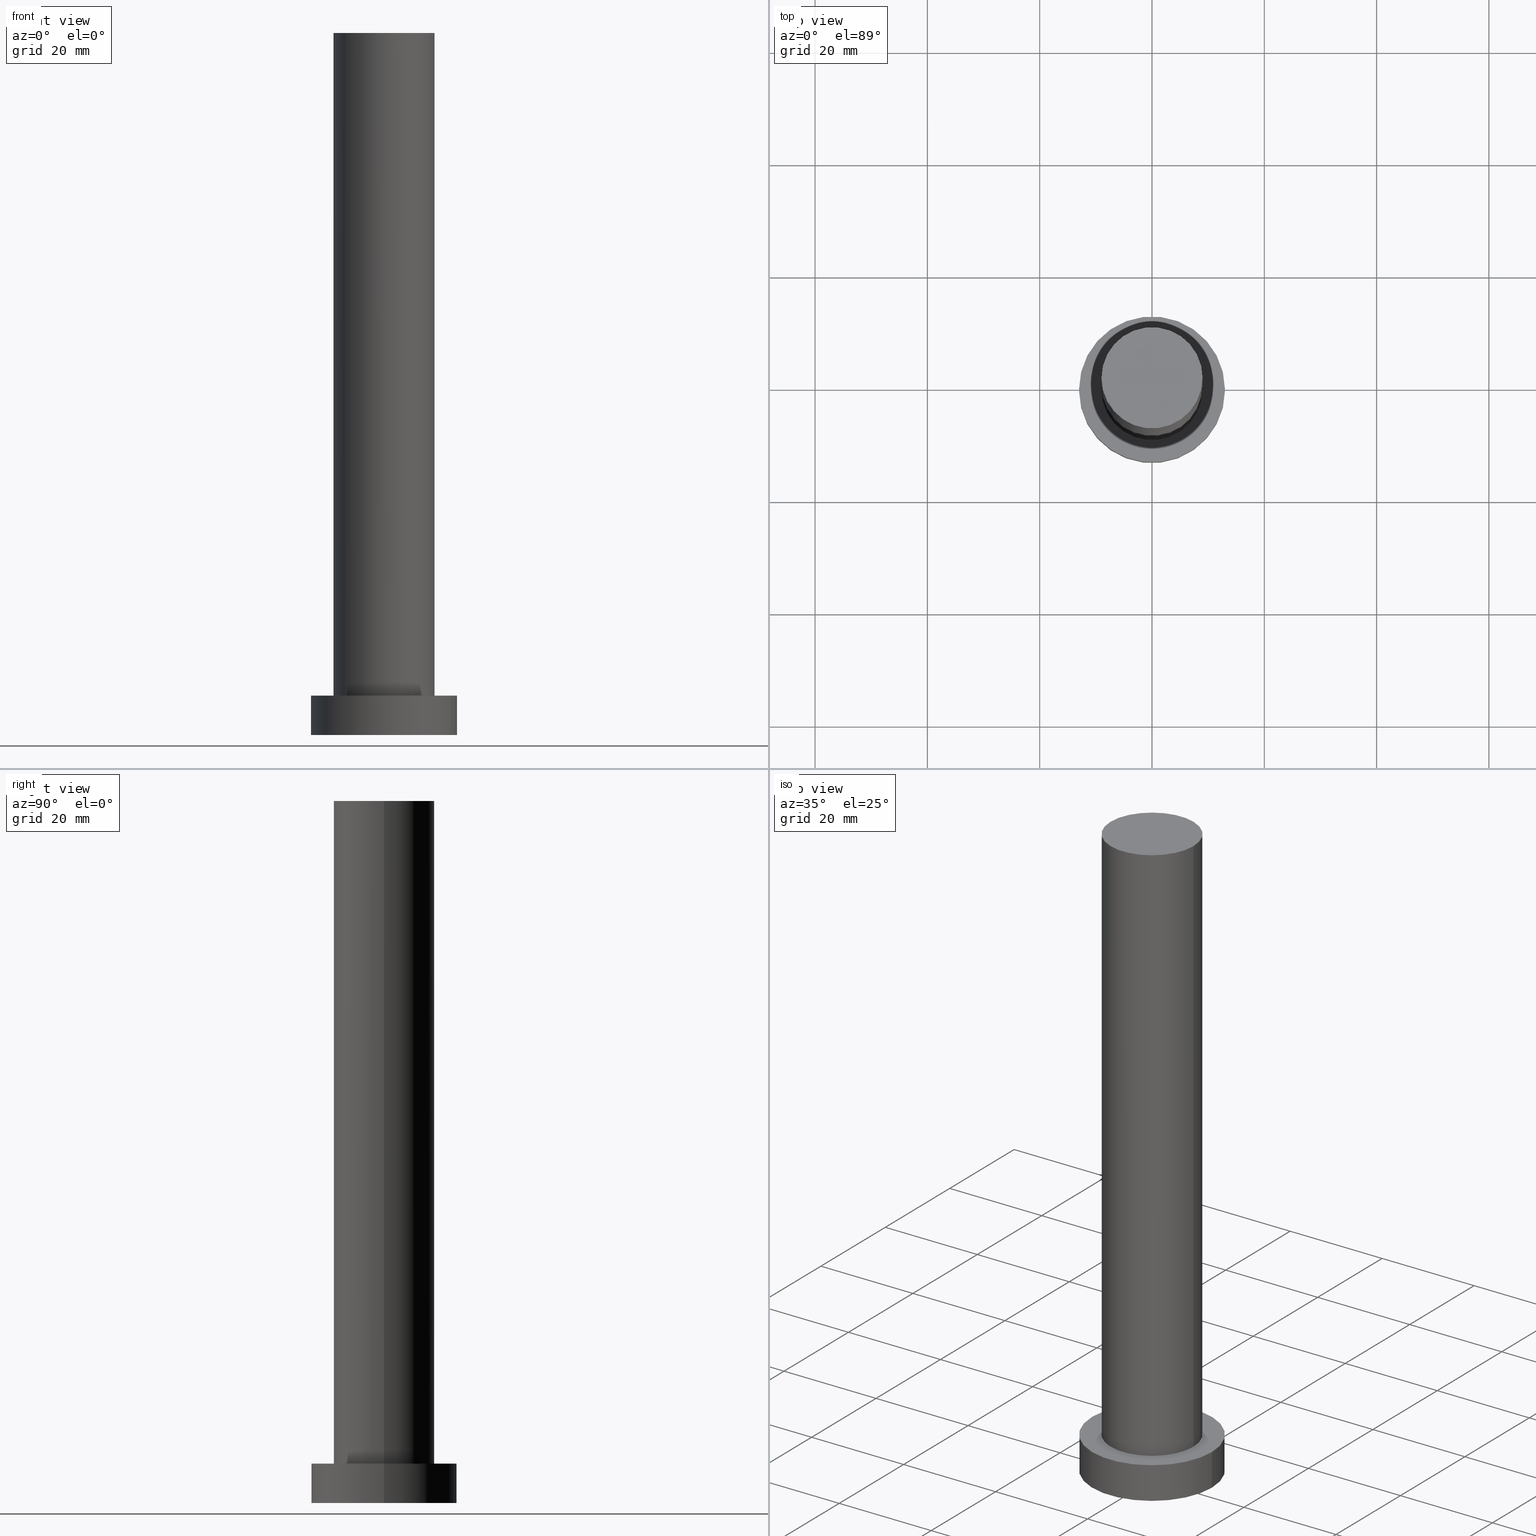
[diagram: canonical four-view strip — front | top / right | iso, engineering-drawing reading convention]
A machine part, canonical four-view strip (front | top / right | iso — engineering-drawing reading convention). The complete STEP part file that produces these views, byte-faithful:
ISO-10303-21;
HEADER;
FILE_DESCRIPTION (( 'STEP AP203' ),
    '1' );
FILE_NAME ('a920.STEP',
    '2023-02-13T09:42:07',
    ( '' ),
    ( '' ),
    'SwSTEP 2.0',
    'SolidWorks 2019',
    '' );
FILE_SCHEMA (( 'CONFIG_CONTROL_DESIGN' ));
ENDSEC;

DATA;
#1 = CARTESIAN_POINT ( 'NONE',  ( 0.000000000000000000, 0.000000000000000000, 0.000000000000000000 ) ) ;
#2 = CARTESIAN_POINT ( 'NONE',  ( 0.000000000000000000, 0.000000000000000000, 0.000000000000000000 ) ) ;
#3 = CARTESIAN_POINT ( 'NONE',  ( 0.000000000000000000, 0.000000000000000000, 125.0000000000000000 ) ) ;
#4 = DIRECTION ( 'NONE',  ( 1.000000000000000000, 0.000000000000000000, 0.000000000000000000 ) ) ;
#5 = DIRECTION ( 'NONE',  ( 0.000000000000000000, 0.000000000000000000, 1.000000000000000000 ) ) ;
#6 = CIRCLE ( 'NONE', #132, 9.000000000000000000 ) ;
#7 = DIRECTION ( 'NONE',  ( 1.000000000000000000, 0.000000000000000000, -0.000000000000000000 ) ) ;
#8 = COORDINATED_UNIVERSAL_TIME_OFFSET ( 1, 0, .AHEAD. ) ;
#9 = ORIENTED_EDGE ( 'NONE', *, *, #150, .T. ) ;
#10 = CC_DESIGN_DATE_AND_TIME_ASSIGNMENT ( #28, #183, ( #155 ) ) ;
#11 = CC_DESIGN_APPROVAL ( #54, ( #117 ) ) ;
#12 = ORIENTED_EDGE ( 'NONE', *, *, #40, .F. ) ;
#13 = ORIENTED_EDGE ( 'NONE', *, *, #211, .F. ) ;
#14 = ADVANCED_FACE ( 'NONE', ( #152 ), #114, .F. ) ;
#15 = ORIENTED_EDGE ( 'NONE', *, *, #83, .F. ) ;
#16 = LOCAL_TIME ( 10, 42, 7.000000000000000000, #219 ) ;
#17 = PERSON_AND_ORGANIZATION ( #23, #50 ) ;
#18 = CC_DESIGN_PERSON_AND_ORGANIZATION_ASSIGNMENT ( #168, #67, ( #117 ) ) ;
#19 = LINE ( 'NONE', #101, #242 ) ;
#20 = DIRECTION ( 'NONE',  ( 0.000000000000000000, 0.000000000000000000, 1.000000000000000000 ) ) ;
#21 = CARTESIAN_POINT ( 'NONE',  ( 0.000000000000000000, 0.000000000000000000, 0.000000000000000000 ) ) ;
#22 = FACE_OUTER_BOUND ( 'NONE', #223, .T. ) ;
#23 = PERSON ( 'NEUR�EN�', 'NEUR�EN�', 'NEUR�EN�', ('NEUR�EN�'), ('NEUR�EN�'), ('NEUR�EN�') ) ;
#24 = CARTESIAN_POINT ( 'NONE',  ( 0.000000000000000000, 0.000000000000000000, 125.0000000000000000 ) ) ;
#25 = APPLICATION_CONTEXT ( 'configuration controlled 3d designs of mechanical parts and assemblies' ) ;
#26 = EDGE_CURVE ( 'NONE', #87, #226, #209, .T. ) ;
#27 = ORIENTED_EDGE ( 'NONE', *, *, #150, .F. ) ;
#28 = DATE_AND_TIME ( #203, #156 ) ;
#29 = LOCAL_TIME ( 10, 42, 7.000000000000000000, #205 ) ;
#30 = ORIENTED_EDGE ( 'NONE', *, *, #83, .T. ) ;
#31 = ORIENTED_EDGE ( 'NONE', *, *, #207, .F. ) ;
#32 = APPROVAL ( #71, 'NEUR�EN�' ) ;
#33 = DATE_AND_TIME ( #170, #29 ) ;
#34 = ORIENTED_EDGE ( 'NONE', *, *, #211, .T. ) ;
#35 = EDGE_CURVE ( 'NONE', #179, #87, #217, .T. ) ;
#36 = DIRECTION ( 'NONE',  ( -0.000000000000000000, -0.000000000000000000, -1.000000000000000000 ) ) ;
#37 = CARTESIAN_POINT ( 'NONE',  ( -13.00000000000000178, 0.000000000000000000, 0.000000000000000000 ) ) ;
#38 = FACE_OUTER_BOUND ( 'NONE', #130, .T. ) ;
#39 = APPROVAL_PERSON_ORGANIZATION ( #17, #32, #48 ) ;
#40 = EDGE_CURVE ( 'NONE', #241, #226, #208, .T. ) ;
#41 = CARTESIAN_POINT ( 'NONE',  ( 9.000000000000000000, 1.102182119232617714E-15, 125.0000000000000000 ) ) ;
#42 = APPROVAL_ROLE ( '' ) ;
#43 = ORIENTED_EDGE ( 'NONE', *, *, #255, .F. ) ;
#44 = EDGE_LOOP ( 'NONE', ( #91, #181, #206, #182 ) ) ;
#45 = DATE_AND_TIME ( #98, #16 ) ;
#46 = EDGE_CURVE ( 'NONE', #184, #169, #133, .T. ) ;
#47 = VECTOR ( 'NONE', #214, 1000.000000000000000 ) ;
#48 = APPROVAL_ROLE ( '' ) ;
#49 = DIRECTION ( 'NONE',  ( -0.000000000000000000, -0.000000000000000000, -1.000000000000000000 ) ) ;
#50 = ORGANIZATION ( 'NEUR�EN�', 'NEUR�EN�', '' ) ;
#51 = DIRECTION ( 'NONE',  ( 1.000000000000000000, 0.000000000000000000, 0.000000000000000000 ) ) ;
#52 = LINE ( 'NONE', #141, #118 ) ;
#53 = MECHANICAL_CONTEXT ( 'NONE', #25, 'mechanical' ) ;
#54 = APPROVAL ( #166, 'NEUR�EN�' ) ;
#55 = CYLINDRICAL_SURFACE ( 'NONE', #97, 9.000000000000000000 ) ;
#56 = DIRECTION ( 'NONE',  ( -1.000000000000000000, 0.000000000000000000, 0.000000000000000000 ) ) ;
#57 = DIRECTION ( 'NONE',  ( 0.000000000000000000, 0.000000000000000000, 1.000000000000000000 ) ) ;
#58 = CARTESIAN_POINT ( 'NONE',  ( 0.000000000000000000, 0.000000000000000000, 7.000000000000000000 ) ) ;
#59 = DIRECTION ( 'NONE',  ( 1.000000000000000000, 0.000000000000000000, 0.000000000000000000 ) ) ;
#60 = APPLICATION_CONTEXT ( 'configuration controlled 3d designs of mechanical parts and assemblies' ) ;
#61 = EDGE_LOOP ( 'NONE', ( #27, #90, #30, #43 ) ) ;
#62 = PRODUCT ( 'a920', 'a920', '', ( #53 ) ) ;
#63 = APPROVAL_DATE_TIME ( #112, #54 ) ;
#64 = ORIENTED_EDGE ( 'NONE', *, *, #35, .T. ) ;
#65 = ORIENTED_EDGE ( 'NONE', *, *, #46, .F. ) ;
#66 = AXIS2_PLACEMENT_3D ( 'NONE', #58, #175, #82 ) ;
#67 = PERSON_AND_ORGANIZATION_ROLE ( 'design_supplier' ) ;
#68 = ORIENTED_EDGE ( 'NONE', *, *, #26, .T. ) ;
#69 = CYLINDRICAL_SURFACE ( 'NONE', #79, 9.000000000000000000 ) ;
#70 = CC_DESIGN_APPROVAL ( #32, ( #154 ) ) ;
#71 = APPROVAL_STATUS ( 'not_yet_approved' ) ;
#72 = APPROVAL_DATE_TIME ( #33, #32 ) ;
#73 = DIRECTION ( 'NONE',  ( 1.000000000000000000, 0.000000000000000000, 0.000000000000000000 ) ) ;
#74 = UNCERTAINTY_MEASURE_WITH_UNIT (LENGTH_MEASURE( 1.000000000000000082E-05 ), #194, 'distance_accuracy_value', 'NONE');
#75 = AXIS2_PLACEMENT_3D ( 'NONE', #1, #76, #213 ) ;
#76 = DIRECTION ( 'NONE',  ( 0.000000000000000000, 0.000000000000000000, 1.000000000000000000 ) ) ;
#77 = CC_DESIGN_PERSON_AND_ORGANIZATION_ASSIGNMENT ( #80, #144, ( #62 ) ) ;
#78 = DIRECTION ( 'NONE',  ( 0.000000000000000000, 0.000000000000000000, 1.000000000000000000 ) ) ;
#79 = AXIS2_PLACEMENT_3D ( 'NONE', #137, #49, #135 ) ;
#80 = PERSON_AND_ORGANIZATION ( #23, #50 ) ;
#81 = AXIS2_PLACEMENT_3D ( 'NONE', #143, #236, #215 ) ;
#82 = DIRECTION ( 'NONE',  ( 1.000000000000000000, 0.000000000000000000, 0.000000000000000000 ) ) ;
#83 = EDGE_CURVE ( 'NONE', #248, #113, #89, .T. ) ;
#84 = DIRECTION ( 'NONE',  ( -1.000000000000000000, 0.000000000000000000, 0.000000000000000000 ) ) ;
#85 = PLANE ( 'NONE',  #188 ) ;
#86 = PERSON_AND_ORGANIZATION ( #23, #50 ) ;
#87 = VERTEX_POINT ( 'NONE', #122 ) ;
#88 = AXIS2_PLACEMENT_3D ( 'NONE', #24, #200, #59 ) ;
#89 = CIRCLE ( 'NONE', #185, 9.000000000000000000 ) ;
#90 = ORIENTED_EDGE ( 'NONE', *, *, #126, .T. ) ;
#91 = ORIENTED_EDGE ( 'NONE', *, *, #26, .F. ) ;
#92 = ORIENTED_EDGE ( 'NONE', *, *, #207, .T. ) ;
#93 = LOCAL_TIME ( 10, 42, 7.000000000000000000, #8 ) ;
#94 = EDGE_CURVE ( 'NONE', #226, #241, #252, .T. ) ;
#95 = DIRECTION ( 'NONE',  ( 1.000000000000000000, 0.000000000000000000, -0.000000000000000000 ) ) ;
#96 = AXIS2_PLACEMENT_3D ( 'NONE', #174, #232, #51 ) ;
#97 = AXIS2_PLACEMENT_3D ( 'NONE', #3, #158, #56 ) ;
#98 = CALENDAR_DATE ( 2023, 13, 2 ) ;
#99 = CARTESIAN_POINT ( 'NONE',  ( 0.000000000000000000, 0.000000000000000000, 0.000000000000000000 ) ) ;
#100 = CC_DESIGN_DATE_AND_TIME_ASSIGNMENT ( #45, #230, ( #154 ) ) ;
#101 = CARTESIAN_POINT ( 'NONE',  ( -13.00000000000000178, 0.000000000000000000, 7.000000000000000000 ) ) ;
#102 = CARTESIAN_POINT ( 'NONE',  ( -9.000000000000000000, 0.000000000000000000, 125.0000000000000000 ) ) ;
#103 = APPROVAL ( #246, 'NEUR�EN�' ) ;
#104 = DIRECTION ( 'NONE',  ( 1.000000000000000000, 0.000000000000000000, 0.000000000000000000 ) ) ;
#105 = FACE_OUTER_BOUND ( 'NONE', #204, .T. ) ;
#106 = COORDINATED_UNIVERSAL_TIME_OFFSET ( 1, 0, .AHEAD. ) ;
#107 = COORDINATED_UNIVERSAL_TIME_OFFSET ( 1, 0, .AHEAD. ) ;
#108 = ORIENTED_EDGE ( 'NONE', *, *, #197, .F. ) ;
#109 = APPROVAL_ROLE ( '' ) ;
#110 = EDGE_LOOP ( 'NONE', ( #31, #15 ) ) ;
#111 = CC_DESIGN_PERSON_AND_ORGANIZATION_ASSIGNMENT ( #201, #222, ( #155 ) ) ;
#112 = DATE_AND_TIME ( #178, #123 ) ;
#113 = VERTEX_POINT ( 'NONE', #119 ) ;
#114 = PLANE ( 'NONE',  #180 ) ;
#115 = CYLINDRICAL_SURFACE ( 'NONE', #249, 13.00000000000000178 ) ;
#116 = CARTESIAN_POINT ( 'NONE',  ( 0.000000000000000000, 0.000000000000000000, 125.0000000000000000 ) ) ;
#117 = PRODUCT_DEFINITION_FORMATION_WITH_SPECIFIED_SOURCE ( 'LIBOVOLN�', '', #62, .NOT_KNOWN. ) ;
#118 = VECTOR ( 'NONE', #212, 1000.000000000000000 ) ;
#119 = CARTESIAN_POINT ( 'NONE',  ( -9.000000000000000000, 0.000000000000000000, 7.000000000000000000 ) ) ;
#120 = FACE_BOUND ( 'NONE', #110, .T. ) ;
#121 = ADVANCED_FACE ( 'NONE', ( #157 ), #55, .T. ) ;
#122 = CARTESIAN_POINT ( 'NONE',  ( 13.00000000000000178, 1.592040838891559293E-15, 7.000000000000000000 ) ) ;
#123 = LOCAL_TIME ( 10, 42, 7.000000000000000000, #106 ) ;
#124 = SECURITY_CLASSIFICATION_LEVEL ( 'unclassified' ) ;
#125 = APPROVAL_DATE_TIME ( #128, #103 ) ;
#126 = EDGE_CURVE ( 'NONE', #169, #248, #52, .T. ) ;
#127 = ORIENTED_EDGE ( 'NONE', *, *, #94, .F. ) ;
#128 = DATE_AND_TIME ( #247, #93 ) ;
#129 = AXIS2_PLACEMENT_3D ( 'NONE', #2, #57, #4 ) ;
#130 = EDGE_LOOP ( 'NONE', ( #13, #68, #202, #108 ) ) ;
#131 = ORIENTED_EDGE ( 'NONE', *, *, #255, .T. ) ;
#132 = AXIS2_PLACEMENT_3D ( 'NONE', #254, #153, #73 ) ;
#133 = CIRCLE ( 'NONE', #199, 9.000000000000000000 ) ;
#134 = DESIGN_CONTEXT ( 'detailed design', #60, 'design' ) ;
#135 = DIRECTION ( 'NONE',  ( -1.000000000000000000, 0.000000000000000000, 0.000000000000000000 ) ) ;
#136 = AXIS2_PLACEMENT_3D ( 'NONE', #21, #78, #139 ) ;
#137 = CARTESIAN_POINT ( 'NONE',  ( 0.000000000000000000, 0.000000000000000000, 125.0000000000000000 ) ) ;
#138 = ADVANCED_FACE ( 'NONE', ( #38 ), #193, .T. ) ;
#139 = DIRECTION ( 'NONE',  ( 1.000000000000000000, 0.000000000000000000, 0.000000000000000000 ) ) ;
#140 = LINE ( 'NONE', #102, #47 ) ;
#141 = CARTESIAN_POINT ( 'NONE',  ( 9.000000000000000000, 1.102182119232617714E-15, 125.0000000000000000 ) ) ;
#142 = CIRCLE ( 'NONE', #96, 13.00000000000000178 ) ;
#143 = CARTESIAN_POINT ( 'NONE',  ( 0.000000000000000000, 0.000000000000000000, 7.000000000000000000 ) ) ;
#144 = PERSON_AND_ORGANIZATION_ROLE ( 'design_owner' ) ;
#145 = ADVANCED_FACE ( 'NONE', ( #120, #22 ), #195, .T. ) ;
#146 = CARTESIAN_POINT ( 'NONE',  ( 0.000000000000000000, 0.000000000000000000, 7.000000000000000000 ) ) ;
#147 =( NAMED_UNIT ( * ) SI_UNIT ( $, .STERADIAN. ) SOLID_ANGLE_UNIT ( ) );
#148 = CARTESIAN_POINT ( 'NONE',  ( -13.00000000000000178, 0.000000000000000000, 7.000000000000000000 ) ) ;
#149 = PERSON_AND_ORGANIZATION_ROLE ( 'classification_officer' ) ;
#150 = EDGE_CURVE ( 'NONE', #169, #184, #224, .T. ) ;
#151 = ADVANCED_BREP_SHAPE_REPRESENTATION ( 'a920', ( #244, #129 ), #237 ) ;
#152 = FACE_OUTER_BOUND ( 'NONE', #162, .T. ) ;
#153 = DIRECTION ( 'NONE',  ( 0.000000000000000000, 0.000000000000000000, 1.000000000000000000 ) ) ;
#154 = SECURITY_CLASSIFICATION ( '', '', #124 ) ;
#155 = PRODUCT_DEFINITION ( 'NEZN�M�', '', #117, #134 ) ;
#156 = LOCAL_TIME ( 10, 42, 7.000000000000000000, #107 ) ;
#157 = FACE_OUTER_BOUND ( 'NONE', #220, .T. ) ;
#158 = DIRECTION ( 'NONE',  ( -0.000000000000000000, -0.000000000000000000, -1.000000000000000000 ) ) ;
#159 = AXIS2_PLACEMENT_3D ( 'NONE', #146, #20, #7 ) ;
#160 = CARTESIAN_POINT ( 'NONE',  ( 0.000000000000000000, 0.000000000000000000, 7.000000000000000000 ) ) ;
#161 = CARTESIAN_POINT ( 'NONE',  ( 0.000000000000000000, 0.000000000000000000, 125.0000000000000000 ) ) ;
#162 = EDGE_LOOP ( 'NONE', ( #12, #127 ) ) ;
#163 = CC_DESIGN_PERSON_AND_ORGANIZATION_ASSIGNMENT ( #86, #165, ( #117 ) ) ;
#164 = PRODUCT_DEFINITION_SHAPE ( 'NONE', 'NONE',  #155 ) ;
#165 = PERSON_AND_ORGANIZATION_ROLE ( 'creator' ) ;
#166 = APPROVAL_STATUS ( 'not_yet_approved' ) ;
#167 = ORIENTED_EDGE ( 'NONE', *, *, #126, .F. ) ;
#168 = PERSON_AND_ORGANIZATION ( #23, #50 ) ;
#169 = VERTEX_POINT ( 'NONE', #41 ) ;
#170 = CALENDAR_DATE ( 2023, 13, 2 ) ;
#171 = PRODUCT_RELATED_PRODUCT_CATEGORY ( 'detail', '', ( #62 ) ) ;
#172 = DIRECTION ( 'NONE',  ( -0.000000000000000000, -0.000000000000000000, -1.000000000000000000 ) ) ;
#173 = CC_DESIGN_SECURITY_CLASSIFICATION ( #154, ( #117 ) ) ;
#174 = CARTESIAN_POINT ( 'NONE',  ( 0.000000000000000000, 0.000000000000000000, 7.000000000000000000 ) ) ;
#175 = DIRECTION ( 'NONE',  ( 0.000000000000000000, 0.000000000000000000, 1.000000000000000000 ) ) ;
#176 = DIRECTION ( 'NONE',  ( -0.000000000000000000, -0.000000000000000000, -1.000000000000000000 ) ) ;
#177 = CARTESIAN_POINT ( 'NONE',  ( -9.000000000000000000, 0.000000000000000000, 125.0000000000000000 ) ) ;
#178 = CALENDAR_DATE ( 2023, 13, 2 ) ;
#179 = VERTEX_POINT ( 'NONE', #148 ) ;
#180 = AXIS2_PLACEMENT_3D ( 'NONE', #99, #231, #95 ) ;
#181 = ORIENTED_EDGE ( 'NONE', *, *, #35, .F. ) ;
#182 = ORIENTED_EDGE ( 'NONE', *, *, #40, .T. ) ;
#183 = DATE_TIME_ROLE ( 'creation_date' ) ;
#184 = VERTEX_POINT ( 'NONE', #177 ) ;
#185 = AXIS2_PLACEMENT_3D ( 'NONE', #160, #238, #104 ) ;
#186 = FACE_OUTER_BOUND ( 'NONE', #44, .T. ) ;
#187 = ADVANCED_FACE ( 'NONE', ( #105 ), #85, .T. ) ;
#188 = AXIS2_PLACEMENT_3D ( 'NONE', #161, #218, #239 ) ;
#189 = VECTOR ( 'NONE', #172, 1000.000000000000000 ) ;
#190 =( NAMED_UNIT ( * ) PLANE_ANGLE_UNIT ( ) SI_UNIT ( $, .RADIAN. ) );
#191 = DIRECTION ( 'NONE',  ( 1.000000000000000000, 0.000000000000000000, 0.000000000000000000 ) ) ;
#192 = ADVANCED_FACE ( 'NONE', ( #253 ), #69, .T. ) ;
#193 = CYLINDRICAL_SURFACE ( 'NONE', #81, 13.00000000000000178 ) ;
#194 =( LENGTH_UNIT ( ) NAMED_UNIT ( * ) SI_UNIT ( .MILLI., .METRE. ) );
#195 = PLANE ( 'NONE',  #159 ) ;
#196 = PERSON_AND_ORGANIZATION ( #23, #50 ) ;
#197 = EDGE_CURVE ( 'NONE', #179, #241, #19, .T. ) ;
#198 = APPROVAL_PERSON_ORGANIZATION ( #196, #103, #109 ) ;
#199 = AXIS2_PLACEMENT_3D ( 'NONE', #116, #5, #191 ) ;
#200 = DIRECTION ( 'NONE',  ( 0.000000000000000000, 0.000000000000000000, 1.000000000000000000 ) ) ;
#201 = PERSON_AND_ORGANIZATION ( #23, #50 ) ;
#202 = ORIENTED_EDGE ( 'NONE', *, *, #94, .T. ) ;
#203 = CALENDAR_DATE ( 2023, 13, 2 ) ;
#204 = EDGE_LOOP ( 'NONE', ( #243, #9 ) ) ;
#205 = COORDINATED_UNIVERSAL_TIME_OFFSET ( 1, 0, .AHEAD. ) ;
#206 = ORIENTED_EDGE ( 'NONE', *, *, #197, .T. ) ;
#207 = EDGE_CURVE ( 'NONE', #113, #248, #6, .T. ) ;
#208 = CIRCLE ( 'NONE', #136, 13.00000000000000178 ) ;
#209 = LINE ( 'NONE', #250, #189 ) ;
#210 = CARTESIAN_POINT ( 'NONE',  ( 13.00000000000000178, 1.592040838891559293E-15, 0.000000000000000000 ) ) ;
#211 = EDGE_CURVE ( 'NONE', #87, #179, #142, .T. ) ;
#212 = DIRECTION ( 'NONE',  ( -0.000000000000000000, -0.000000000000000000, -1.000000000000000000 ) ) ;
#213 = DIRECTION ( 'NONE',  ( 1.000000000000000000, 0.000000000000000000, 0.000000000000000000 ) ) ;
#214 = DIRECTION ( 'NONE',  ( -0.000000000000000000, -0.000000000000000000, -1.000000000000000000 ) ) ;
#215 = DIRECTION ( 'NONE',  ( -1.000000000000000000, 0.000000000000000000, 0.000000000000000000 ) ) ;
#216 = APPLICATION_PROTOCOL_DEFINITION ( 'international standard', 'config_control_design', 1994, #60 ) ;
#217 = CIRCLE ( 'NONE', #66, 13.00000000000000178 ) ;
#218 = DIRECTION ( 'NONE',  ( 0.000000000000000000, 0.000000000000000000, 1.000000000000000000 ) ) ;
#219 = COORDINATED_UNIVERSAL_TIME_OFFSET ( 1, 0, .AHEAD. ) ;
#220 = EDGE_LOOP ( 'NONE', ( #167, #65, #131, #92 ) ) ;
#221 = CC_DESIGN_PERSON_AND_ORGANIZATION_ASSIGNMENT ( #240, #149, ( #154 ) ) ;
#222 = PERSON_AND_ORGANIZATION_ROLE ( 'creator' ) ;
#223 = EDGE_LOOP ( 'NONE', ( #64, #34 ) ) ;
#224 = CIRCLE ( 'NONE', #88, 9.000000000000000000 ) ;
#225 = PERSON_AND_ORGANIZATION ( #23, #50 ) ;
#226 = VERTEX_POINT ( 'NONE', #210 ) ;
#227 = CARTESIAN_POINT ( 'NONE',  ( 0.000000000000000000, 0.000000000000000000, 7.000000000000000000 ) ) ;
#228 = CC_DESIGN_APPROVAL ( #103, ( #155 ) ) ;
#229 = CLOSED_SHELL ( 'NONE', ( #192, #138, #245, #145, #14, #121, #187 ) ) ;
#230 = DATE_TIME_ROLE ( 'classification_date' ) ;
#231 = DIRECTION ( 'NONE',  ( 0.000000000000000000, 0.000000000000000000, 1.000000000000000000 ) ) ;
#232 = DIRECTION ( 'NONE',  ( 0.000000000000000000, 0.000000000000000000, 1.000000000000000000 ) ) ;
#233 = APPROVAL_PERSON_ORGANIZATION ( #225, #54, #42 ) ;
#234 = CARTESIAN_POINT ( 'NONE',  ( 9.000000000000000000, 1.102182119232617714E-15, 7.000000000000000000 ) ) ;
#235 = APPLICATION_PROTOCOL_DEFINITION ( 'international standard', 'config_control_design', 1994, #25 ) ;
#236 = DIRECTION ( 'NONE',  ( -0.000000000000000000, -0.000000000000000000, -1.000000000000000000 ) ) ;
#237 =( GEOMETRIC_REPRESENTATION_CONTEXT ( 3 ) GLOBAL_UNCERTAINTY_ASSIGNED_CONTEXT ( ( #74 ) ) GLOBAL_UNIT_ASSIGNED_CONTEXT ( ( #194, #190, #147 ) ) REPRESENTATION_CONTEXT ( 'NONE', 'WORKASPACE' ) );
#238 = DIRECTION ( 'NONE',  ( 0.000000000000000000, 0.000000000000000000, 1.000000000000000000 ) ) ;
#239 = DIRECTION ( 'NONE',  ( 1.000000000000000000, 0.000000000000000000, -0.000000000000000000 ) ) ;
#240 = PERSON_AND_ORGANIZATION ( #23, #50 ) ;
#241 = VERTEX_POINT ( 'NONE', #37 ) ;
#242 = VECTOR ( 'NONE', #36, 1000.000000000000000 ) ;
#243 = ORIENTED_EDGE ( 'NONE', *, *, #46, .T. ) ;
#244 = MANIFOLD_SOLID_BREP ( 'P�idat vysunut�m3', #229 ) ;
#245 = ADVANCED_FACE ( 'NONE', ( #186 ), #115, .T. ) ;
#246 = APPROVAL_STATUS ( 'not_yet_approved' ) ;
#247 = CALENDAR_DATE ( 2023, 13, 2 ) ;
#248 = VERTEX_POINT ( 'NONE', #234 ) ;
#249 = AXIS2_PLACEMENT_3D ( 'NONE', #227, #176, #84 ) ;
#250 = CARTESIAN_POINT ( 'NONE',  ( 13.00000000000000178, 1.592040838891559293E-15, 7.000000000000000000 ) ) ;
#251 = SHAPE_DEFINITION_REPRESENTATION ( #164, #151 ) ;
#252 = CIRCLE ( 'NONE', #75, 13.00000000000000178 ) ;
#253 = FACE_OUTER_BOUND ( 'NONE', #61, .T. ) ;
#254 = CARTESIAN_POINT ( 'NONE',  ( 0.000000000000000000, 0.000000000000000000, 7.000000000000000000 ) ) ;
#255 = EDGE_CURVE ( 'NONE', #184, #113, #140, .T. ) ;
ENDSEC;
END-ISO-10303-21;
